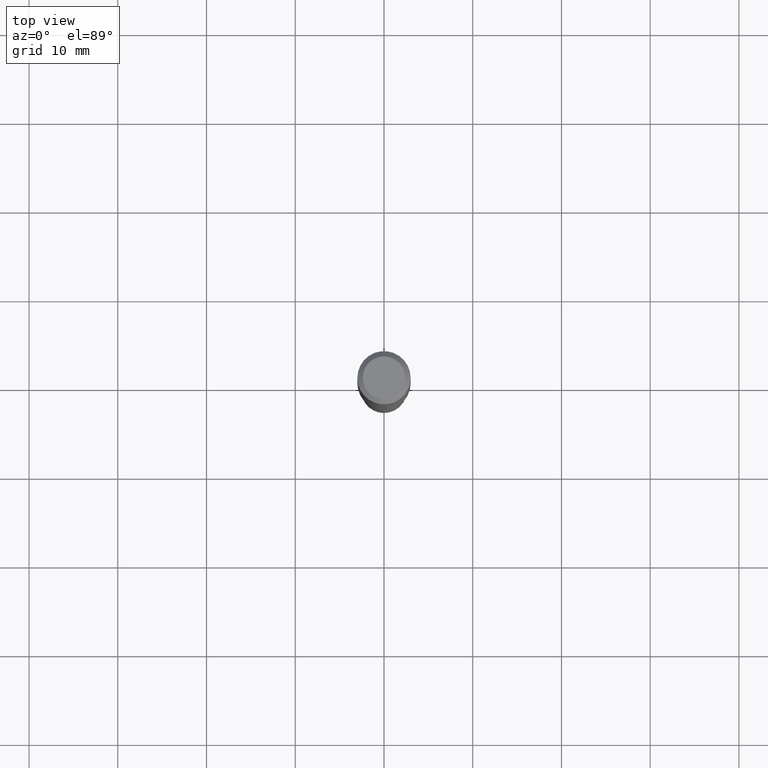
[diagram: clean part render]
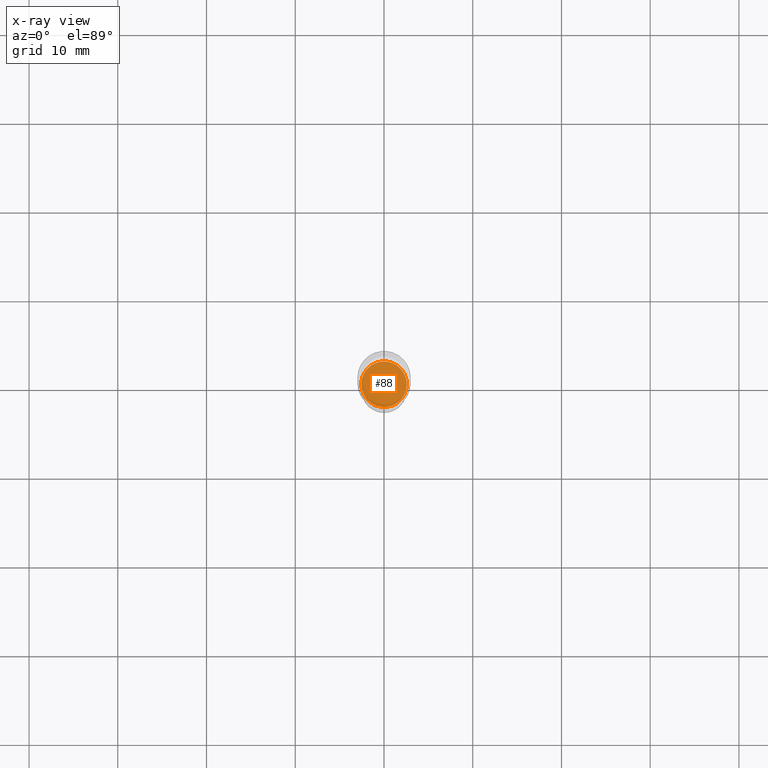
[diagram: x-ray — body ghosted, one internal face saturated and labeled with its STEP entity id]
A machine part, top view, then the same camera in x-ray: the body is ghosted and one INTERNAL B-rep face — a face not visible from any outside direction — is saturated and labeled: STEP entity #88.
In plain terms, the highlighted planar face has unit normal (-0, 0, 1).
Its self-contained STEP definition (entity closure, byte-faithful):
#45 = CIRCLE ( 'NONE', #146, 0.1010500000000000009 ) ;
#79 = CARTESIAN_POINT ( 'NONE',  ( 4.155096048589166181E-29, -5.932375942828389297E-15, -1.699100000000000277 ) ) ;
#80 = EDGE_CURVE ( 'NONE', #296, #485, #319, .T. ) ;
#86 = ORIENTED_EDGE ( 'NONE', *, *, #80, .F. ) ;
#88 = ADVANCED_FACE ( 'NONE', ( #414 ), #480, .F. ) ;
#121 = CARTESIAN_POINT ( 'NONE',  ( -0.1010500000000000009, -5.211723281168696260E-15, -1.699100000000000277 ) ) ;
#140 = ORIENTED_EDGE ( 'NONE', *, *, #488, .F. ) ;
#146 = AXIS2_PLACEMENT_3D ( 'NONE', #79, #365, #310 ) ;
#164 = DIRECTION ( 'NONE',  ( 1.000000000000000000, -6.982962677686269077E-15, 0.000000000000000000 ) ) ;
#169 = DIRECTION ( 'NONE',  ( -2.438088387897960049E-29, 3.491481338843145188E-15, 1.000000000000000000 ) ) ;
#241 = CARTESIAN_POINT ( 'NONE',  ( 0.1010500000000000009, -6.638004321408586283E-15, -1.699100000000000277 ) ) ;
#253 = CARTESIAN_POINT ( 'NONE',  ( 4.155096048589166181E-29, -5.932375942828389297E-15, -1.699100000000000277 ) ) ;
#257 = CARTESIAN_POINT ( 'NONE',  ( 4.155096048589166181E-29, -5.932375942828389297E-15, -1.699100000000000277 ) ) ;
#296 = VERTEX_POINT ( 'NONE', #241 ) ;
#310 = DIRECTION ( 'NONE',  ( 1.000000000000000000, -6.982962677686269077E-15, 0.000000000000000000 ) ) ;
#319 = CIRCLE ( 'NONE', #421, 0.1010500000000000009 ) ;
#329 = DIRECTION ( 'NONE',  ( -2.445468806185136597E-29, 3.491481338843145583E-15, 1.000000000000000000 ) ) ;
#365 = DIRECTION ( 'NONE',  ( -2.445468806185136597E-29, 3.491481338843145583E-15, 1.000000000000000000 ) ) ;
#414 = FACE_OUTER_BOUND ( 'NONE', #443, .T. ) ;
#421 = AXIS2_PLACEMENT_3D ( 'NONE', #257, #329, #164 ) ;
#432 = DIRECTION ( 'NONE',  ( 1.000000000000000000, -6.982962677686265922E-15, 4.876176775795935793E-29 ) ) ;
#443 = EDGE_LOOP ( 'NONE', ( #86, #140 ) ) ;
#480 = PLANE ( 'NONE',  #481 ) ;
#481 = AXIS2_PLACEMENT_3D ( 'NONE', #253, #169, #432 ) ;
#485 = VERTEX_POINT ( 'NONE', #121 ) ;
#488 = EDGE_CURVE ( 'NONE', #485, #296, #45, .T. ) ;